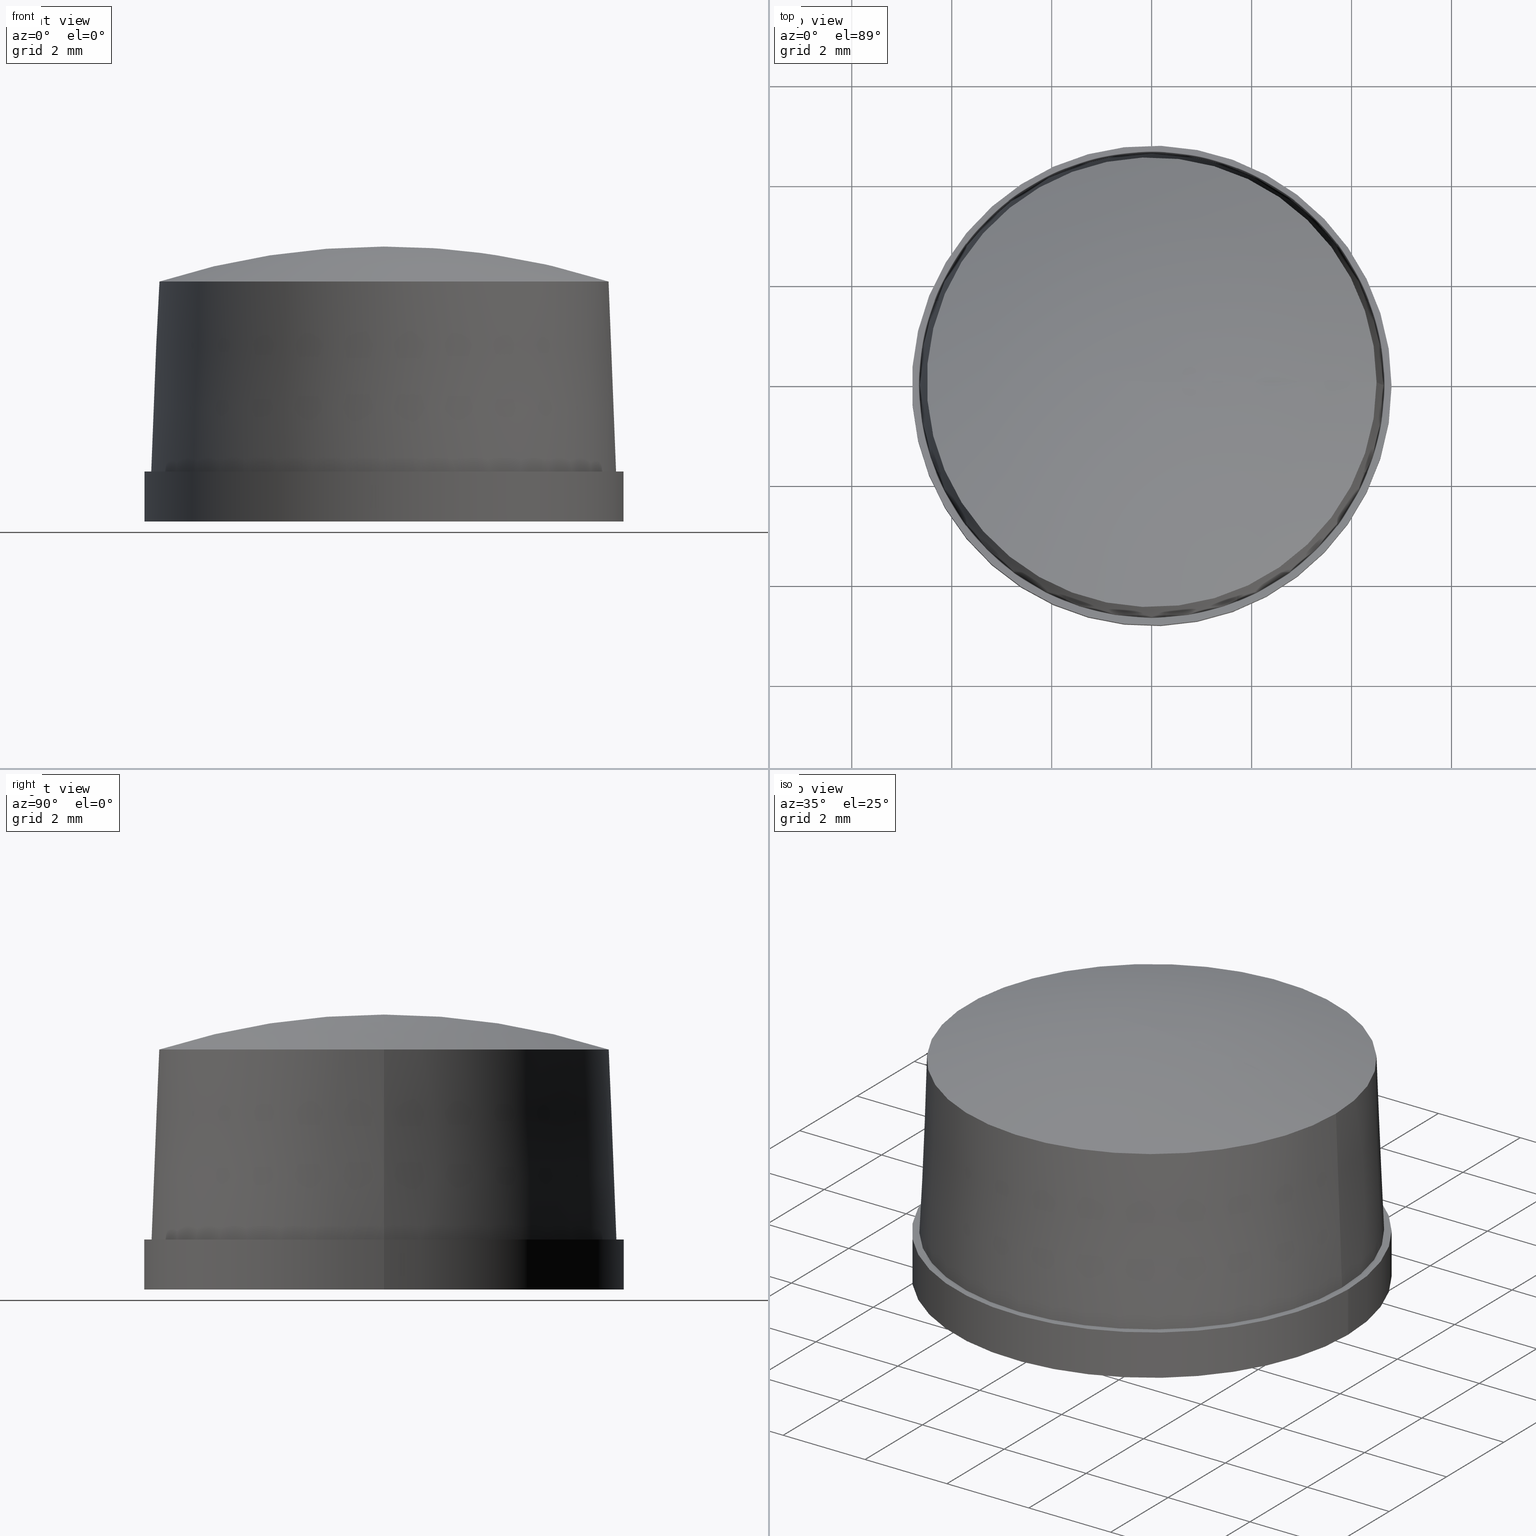
[diagram: canonical four-view strip — front | top / right | iso, engineering-drawing reading convention]
A machine part, canonical four-view strip (front | top / right | iso — engineering-drawing reading convention). The complete STEP part file that produces these views, byte-faithful:
ISO-10303-21;
HEADER;
/* Generated by software containing ST-Developer
 * from STEP Tools, Inc. (www.steptools.com) 
 */

FILE_DESCRIPTION(
/* description */ (''),
/* implementation_level */ '2;1');

FILE_NAME(
/* name */ '\\\\SYNOLOGYNAS\\web\\db2\\PR2-10-5T\\\X2\B3C4BA74\X0\\\PR
2-10-5T.stp',
/* time_stamp */ '2024-10-09T14:46:49+09:00',
/* author */ ('user'),
/* organization */ (''),
/* preprocessor_version */ 'ST-DEVELOPER v15.6',
/* originating_system */ 'Autodesk Inventor 2015',
/* authorisation */ '');

FILE_SCHEMA (('AUTOMOTIVE_DESIGN { 1 0 10303 214 3 1 1 }'));
ENDSEC;

DATA;
#10=MECHANICAL_DESIGN_GEOMETRIC_PRESENTATION_REPRESENTATION('',(#13),#109);
#11=SHAPE_REPRESENTATION_RELATIONSHIP('SRR','None',#118,#12);
#12=ADVANCED_BREP_SHAPE_REPRESENTATION($,(#14),#108);
#13=STYLED_ITEM('',(#127),#14);
#14=MANIFOLD_SOLID_BREP('\X2\C194B9ACB4DC\X0\1',#61);
#15=SPHERICAL_SURFACE('',#71,14.8142857142857);
#16=CYLINDRICAL_SURFACE('',#68,4.8);
#17=PLANE('',#66);
#18=PLANE('',#70);
#19=FACE_BOUND('',#28,.T.);
#20=FACE_BOUND('',#31,.T.);
#21=FACE_BOUND('',#33,.T.);
#22=FACE_OUTER_BOUND('',#27,.T.);
#23=FACE_OUTER_BOUND('',#29,.T.);
#24=FACE_OUTER_BOUND('',#30,.T.);
#25=FACE_OUTER_BOUND('',#32,.T.);
#26=FACE_OUTER_BOUND('',#34,.T.);
#27=EDGE_LOOP('',(#47));
#28=EDGE_LOOP('',(#48));
#29=EDGE_LOOP('',(#49));
#30=EDGE_LOOP('',(#50));
#31=EDGE_LOOP('',(#51));
#32=EDGE_LOOP('',(#52));
#33=EDGE_LOOP('',(#53));
#34=EDGE_LOOP('',(#54));
#35=CIRCLE('',#64,4.5);
#36=CIRCLE('',#65,4.65);
#37=CIRCLE('',#67,4.8);
#38=CIRCLE('',#69,4.8);
#39=VERTEX_POINT('',#94);
#40=VERTEX_POINT('',#96);
#41=VERTEX_POINT('',#99);
#42=VERTEX_POINT('',#102);
#43=EDGE_CURVE('',#39,#39,#35,.T.);
#44=EDGE_CURVE('',#40,#40,#36,.T.);
#45=EDGE_CURVE('',#41,#41,#37,.T.);
#46=EDGE_CURVE('',#42,#42,#38,.T.);
#47=ORIENTED_EDGE('',*,*,#43,.F.);
#48=ORIENTED_EDGE('',*,*,#44,.T.);
#49=ORIENTED_EDGE('',*,*,#45,.F.);
#50=ORIENTED_EDGE('',*,*,#46,.F.);
#51=ORIENTED_EDGE('',*,*,#45,.T.);
#52=ORIENTED_EDGE('',*,*,#46,.T.);
#53=ORIENTED_EDGE('',*,*,#44,.F.);
#54=ORIENTED_EDGE('',*,*,#43,.T.);
#55=CONICAL_SURFACE('',#63,4.575,2.26050191114129);
#56=ADVANCED_FACE('',(#22,#19),#55,.T.);
#57=ADVANCED_FACE('',(#23),#17,.T.);
#58=ADVANCED_FACE('',(#24,#20),#16,.T.);
#59=ADVANCED_FACE('',(#25,#21),#18,.T.);
#60=ADVANCED_FACE('',(#26),#15,.T.);
#61=CLOSED_SHELL('',(#56,#57,#58,#59,#60));
#62=AXIS2_PLACEMENT_3D('placement',#92,#72,#73);
#63=AXIS2_PLACEMENT_3D('',#93,#74,#75);
#64=AXIS2_PLACEMENT_3D('',#95,#76,#77);
#65=AXIS2_PLACEMENT_3D('',#97,#78,#79);
#66=AXIS2_PLACEMENT_3D('',#98,#80,#81);
#67=AXIS2_PLACEMENT_3D('',#100,#82,#83);
#68=AXIS2_PLACEMENT_3D('',#101,#84,#85);
#69=AXIS2_PLACEMENT_3D('',#103,#86,#87);
#70=AXIS2_PLACEMENT_3D('',#104,#88,#89);
#71=AXIS2_PLACEMENT_3D('',#105,#90,#91);
#72=DIRECTION('axis',(0.,0.,1.));
#73=DIRECTION('refdir',(1.,0.,0.));
#74=DIRECTION('center_axis',(-4.84756024662494E-17,0.,-1.));
#75=DIRECTION('ref_axis',(1.,0.,-5.96870416983002E-17));
#76=DIRECTION('center_axis',(4.84756024662494E-17,0.,1.));
#77=DIRECTION('ref_axis',(1.,0.,0.));
#78=DIRECTION('center_axis',(4.84756024662494E-17,0.,1.));
#79=DIRECTION('ref_axis',(1.,0.,-5.96870416983002E-17));
#80=DIRECTION('center_axis',(-4.84756024662494E-17,0.,-1.));
#81=DIRECTION('ref_axis',(-1.,0.,4.44089209850063E-17));
#82=DIRECTION('center_axis',(4.84756024662494E-17,0.,1.));
#83=DIRECTION('ref_axis',(1.,0.,-5.96870416983002E-17));
#84=DIRECTION('center_axis',(4.84756024662494E-17,0.,1.));
#85=DIRECTION('ref_axis',(1.,0.,-5.96870416983002E-17));
#86=DIRECTION('center_axis',(4.84756024662494E-17,0.,1.));
#87=DIRECTION('ref_axis',(1.,0.,-5.96870416983002E-17));
#88=DIRECTION('center_axis',(4.84756024662494E-17,0.,1.));
#89=DIRECTION('ref_axis',(1.,0.,-4.84756024662494E-17));
#90=DIRECTION('center_axis',(6.12323399573677E-17,0.,1.));
#91=DIRECTION('ref_axis',(1.,0.,0.));
#92=CARTESIAN_POINT('',(0.,0.,0.));
#93=CARTESIAN_POINT('Origin',(1.40579247152123E-16,0.,1.9));
#94=CARTESIAN_POINT('',(4.5,0.,3.8));
#95=CARTESIAN_POINT('Origin',(2.32682891837997E-16,0.,3.8));
#96=CARTESIAN_POINT('',(4.65,0.,0.));
#97=CARTESIAN_POINT('Origin',(4.84756024662494E-17,0.,2.2541155146806E-16));
#98=CARTESIAN_POINT('Origin',(2.4,0.,-1.));
#99=CARTESIAN_POINT('',(4.8,0.,-1.));
#100=CARTESIAN_POINT('Origin',(7.70371977754894E-33,0.,-1.));
#101=CARTESIAN_POINT('Origin',(2.42378012331247E-17,0.,-0.5));
#102=CARTESIAN_POINT('',(4.8,0.,-6.16297582203915E-32));
#103=CARTESIAN_POINT('Origin',(4.84756024662494E-17,0.,2.32682891837997E-16));
#104=CARTESIAN_POINT('Origin',(4.725,0.,-3.08148791101958E-32));
#105=CARTESIAN_POINT('Origin',(-5.15548802943E-15,0.,-10.3142857142857));
#106=UNCERTAINTY_MEASURE_WITH_UNIT(LENGTH_MEASURE(0.01),#110,
'DISTANCE_ACCURACY_VALUE',
'Maximum model space distance between geometric entities at asserted c
onnectivities');
#107=UNCERTAINTY_MEASURE_WITH_UNIT(LENGTH_MEASURE(1.E-6),#110,
'DISTANCE_ACCURACY_VALUE',
'Maximum model space distance between geometric entities at asserted c
onnectivities');
#108=(
GEOMETRIC_REPRESENTATION_CONTEXT(3)
GLOBAL_UNCERTAINTY_ASSIGNED_CONTEXT((#106))
GLOBAL_UNIT_ASSIGNED_CONTEXT((#110,#113,#111))
REPRESENTATION_CONTEXT('','3D')
);
#109=(
GEOMETRIC_REPRESENTATION_CONTEXT(3)
GLOBAL_UNCERTAINTY_ASSIGNED_CONTEXT((#107))
GLOBAL_UNIT_ASSIGNED_CONTEXT((#110,#113,#111))
REPRESENTATION_CONTEXT('','3D')
);
#110=(
LENGTH_UNIT()
NAMED_UNIT(*)
SI_UNIT(.MILLI.,.METRE.)
);
#111=(
NAMED_UNIT(*)
SI_UNIT($,.STERADIAN.)
SOLID_ANGLE_UNIT()
);
#112=DIMENSIONAL_EXPONENTS(0.,0.,0.,0.,0.,0.,0.);
#113=(
CONVERSION_BASED_UNIT('degree',#115)
NAMED_UNIT(#112)
PLANE_ANGLE_UNIT()
);
#114=(
NAMED_UNIT(*)
PLANE_ANGLE_UNIT()
SI_UNIT($,.RADIAN.)
);
#115=PLANE_ANGLE_MEASURE_WITH_UNIT(PLANE_ANGLE_MEASURE(0.01745329252),#114);
#116=SHAPE_DEFINITION_REPRESENTATION(#117,#118);
#117=PRODUCT_DEFINITION_SHAPE('',$,#120);
#118=SHAPE_REPRESENTATION('',(#62),#108);
#119=PRODUCT_DEFINITION_CONTEXT('part definition',#124,'design');
#120=PRODUCT_DEFINITION('PR2-10-5T','PR2-10-5T',#121,#119);
#121=PRODUCT_DEFINITION_FORMATION('',$,#126);
#122=PRODUCT_RELATED_PRODUCT_CATEGORY('PR2-10-5T','PR2-10-5T',(#126));
#123=APPLICATION_PROTOCOL_DEFINITION('international standard',
'automotive_design',2009,#124);
#124=APPLICATION_CONTEXT(
'Core Data for Automotive Mechanical Design Process');
#125=PRODUCT_CONTEXT('part definition',#124,'mechanical');
#126=PRODUCT('PR2-10-5T','PR2-10-5T',$,(#125));
#127=PRESENTATION_STYLE_ASSIGNMENT((#128));
#128=SURFACE_STYLE_USAGE(.BOTH.,#129);
#129=SURFACE_SIDE_STYLE($,(#130));
#130=SURFACE_STYLE_FILL_AREA(#131);
#131=FILL_AREA_STYLE($,(#132));
#132=FILL_AREA_STYLE_COLOUR($,#133);
#133=COLOUR_RGB('',1.,1.,1.);
ENDSEC;
END-ISO-10303-21;
